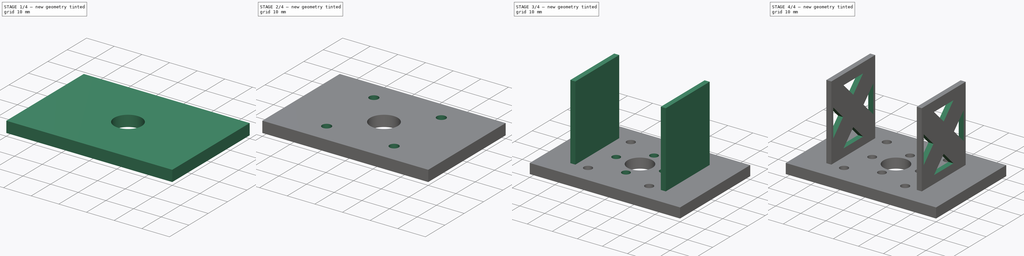
[diagram: build sequence overview — one tinted view per stage of 4, left to right]
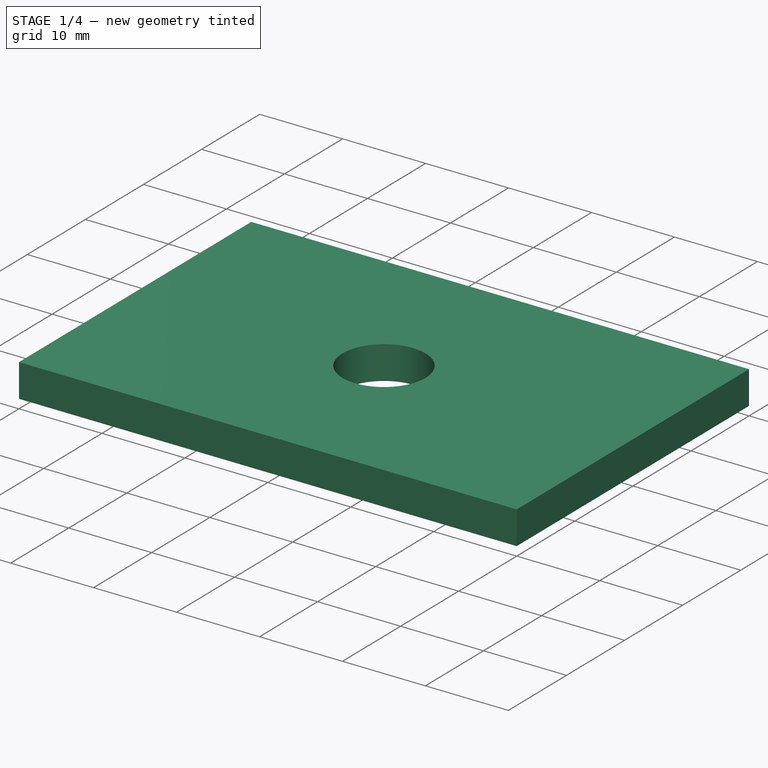
[diagram: stage 1 of 4 — iso view after this stage's code; geometry added in this stage tinted green]
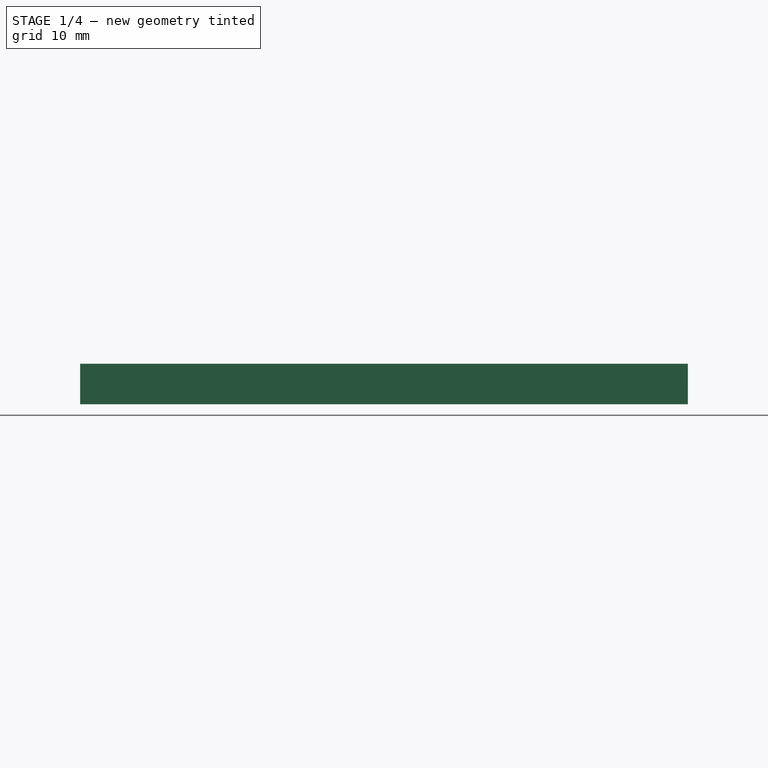
[diagram: stage 1 of 4 — front view after this stage's code; geometry added in this stage tinted green]
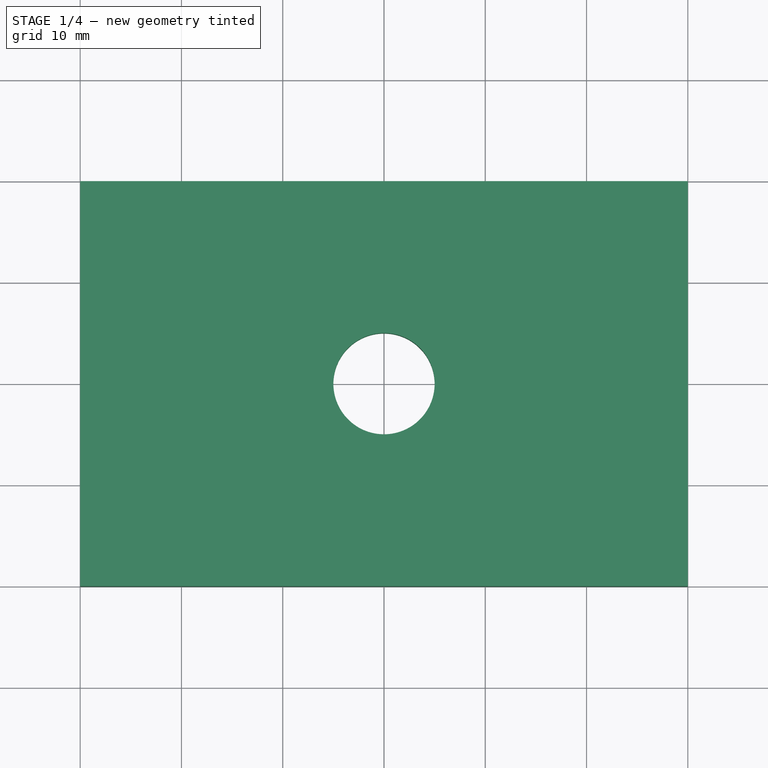
[diagram: stage 1 of 4 — top view after this stage's code; geometry added in this stage tinted green]
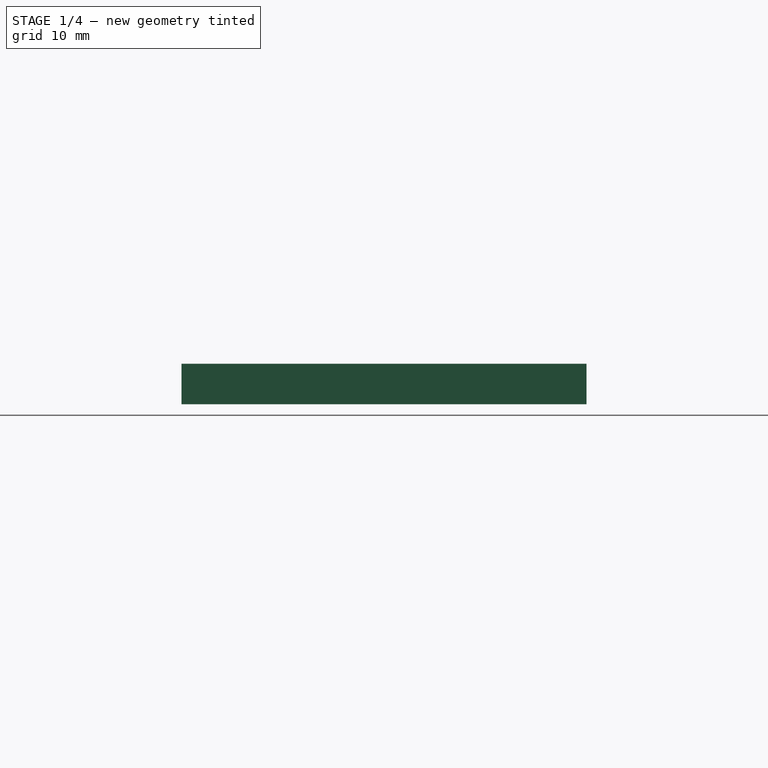
[diagram: stage 1 of 4 — right view after this stage's code; geometry added in this stage tinted green]
FCSTD DOCUMENT  (FreeCAD 0.18.1R)
Label: motor_mount_tractor
License: All rights reserved
LicenseURL: http://en.wikipedia.org/wiki/All_rights_reserved
objects: Sketcher::SketchObject×6, PartDesign::Pocket×3, PartDesign::PolarPattern×3, PartDesign::Pad×2, PartDesign::Line×2, PartDesign::MultiTransform×2, PartDesign::Hole×1, PartDesign::Body×1
note: 26 computed .brp shape members not serialized (recipe doc carries the construction recipe); baked Part::Feature solids carry a one-line shape summary decoded from their .brp

FEATURE [Sketcher::SketchObject] Sketch
  MapMode = 5
  Support = -> [XY_Plane]
  sketch-geometry (4):
    g0: LineSegment StartX=0 StartY=40 StartZ=0 EndX=60 EndY=40 EndZ=0
    g1: LineSegment StartX=60 StartY=40 StartZ=0 EndX=60 EndY=0 EndZ=0
    g2: LineSegment StartX=60 StartY=0 StartZ=0 EndX=0 EndY=0 EndZ=0
    g3: LineSegment StartX=0 StartY=0 StartZ=0 EndX=0 EndY=40 EndZ=0
  constraints (11):
    c: Coincident(g0,g1)
    c: Coincident(g1,g2)
    c: Coincident(g2,g3)
    c: Coincident(g3,g0)
    c: Horizontal(g0)
    c: Horizontal(g2)
    c: Vertical(g1)
    c: Vertical(g3)
    c: Coincident(g2,g-1)
    c: DistanceX(g0,g0) = 60
    c: DistanceY(g3,g3) = 40
FEATURE [PartDesign::Pad] Pad
  Length = 4
  Length2 = 100.076
  Profile = -> Sketch
  Refine = true
  Type = 0
FEATURE [Sketcher::SketchObject] Sketch001
  ExternalGeometry = -> [Pad]
  MapMode = 5
  Placement = pos=(0,0,4) rot=(0,0,1;0rad)
  Support = -> [Pad]
  sketch-geometry (3):
    g0: Circle CenterX=30 CenterY=20 CenterZ=0 NormalX=0 NormalY=0 NormalZ=1 AngleXU=0 Radius=5
    g1: LineSegment [constr] StartX=60 StartY=20 StartZ=0 EndX=30 EndY=20 EndZ=0
    g2: LineSegment [constr] StartX=30 StartY=40 StartZ=0 EndX=30 EndY=20 EndZ=0
  constraints (7):
    c: Diameter(g0) = 10
    c: Horizontal(g1)
    c: Vertical(g2)
    c: Coincident(g2,g1)
    c: Coincident(g0,g1)
    c: Symmetric(g-4,g-4,g1)
    c: Symmetric(g-3,g-4,g2)
FEATURE [PartDesign::Pocket] Pocket
  BaseFeature = -> Pad
  Length = 5.08
  Length2 = 100.076
  Profile = -> Sketch001
  Refine = true
  Type = 1
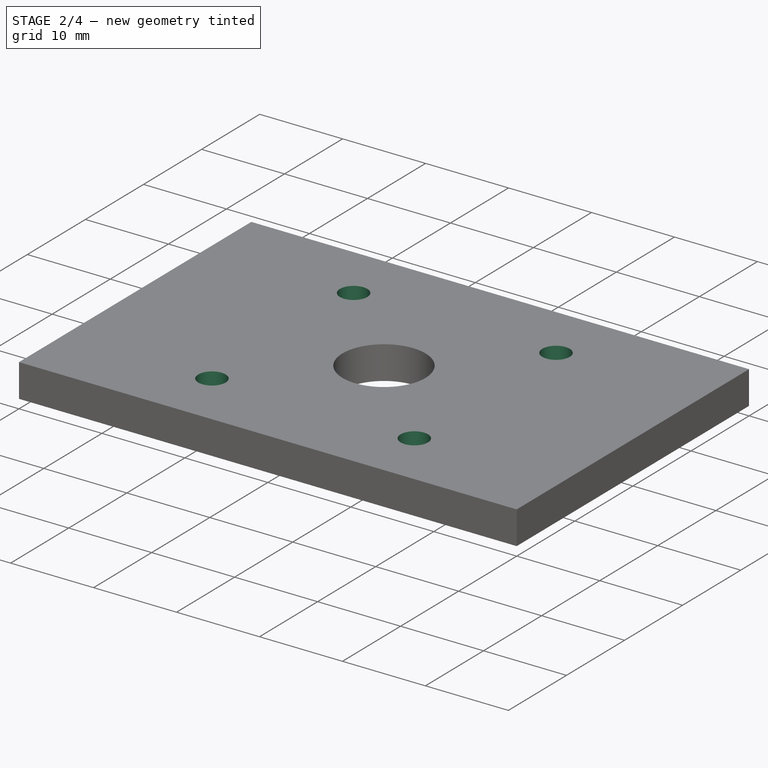
[diagram: stage 2 of 4 — iso view after this stage's code; geometry added in this stage tinted green]
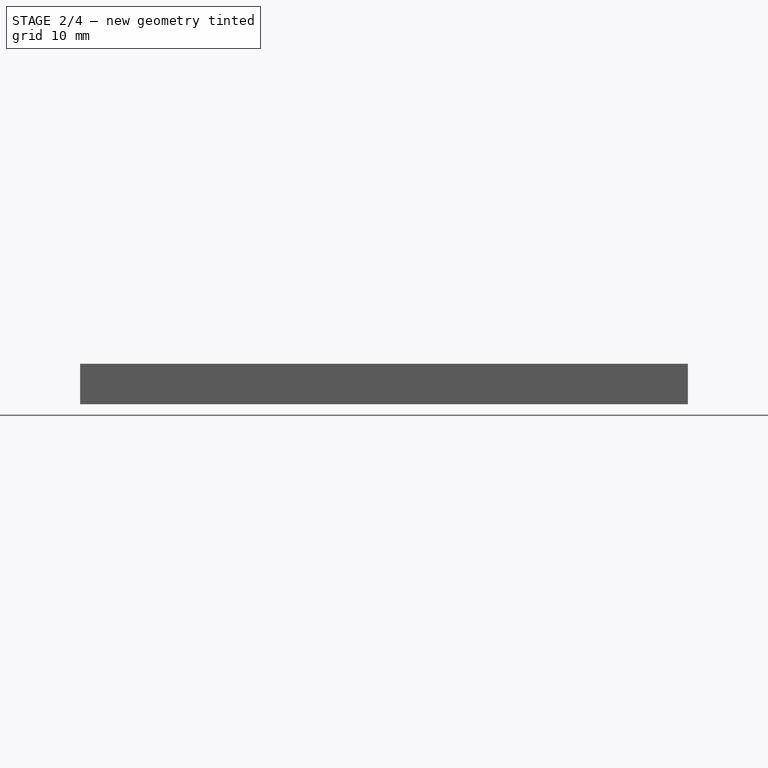
[diagram: stage 2 of 4 — front view after this stage's code; geometry added in this stage tinted green]
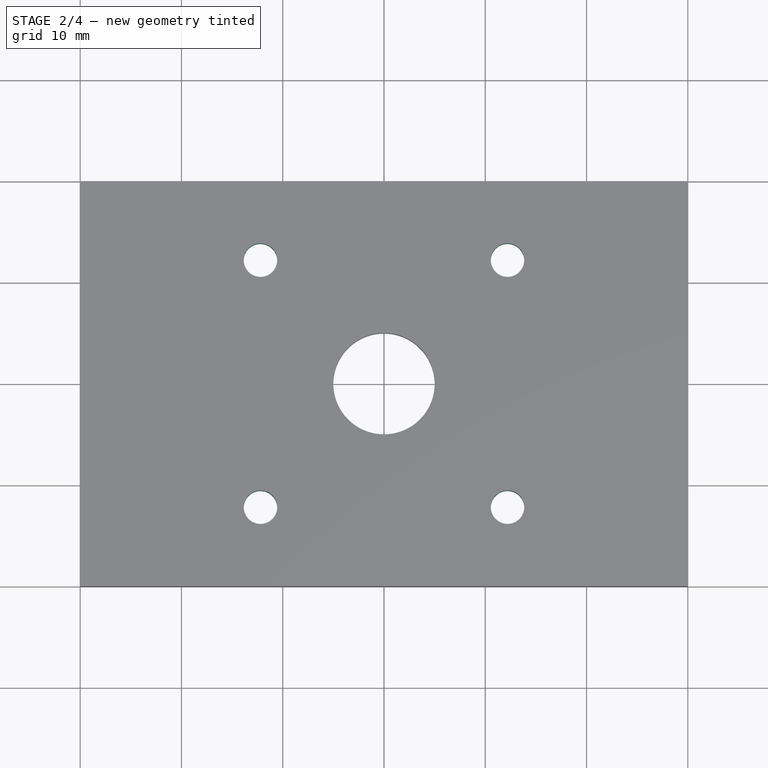
[diagram: stage 2 of 4 — top view after this stage's code; geometry added in this stage tinted green]
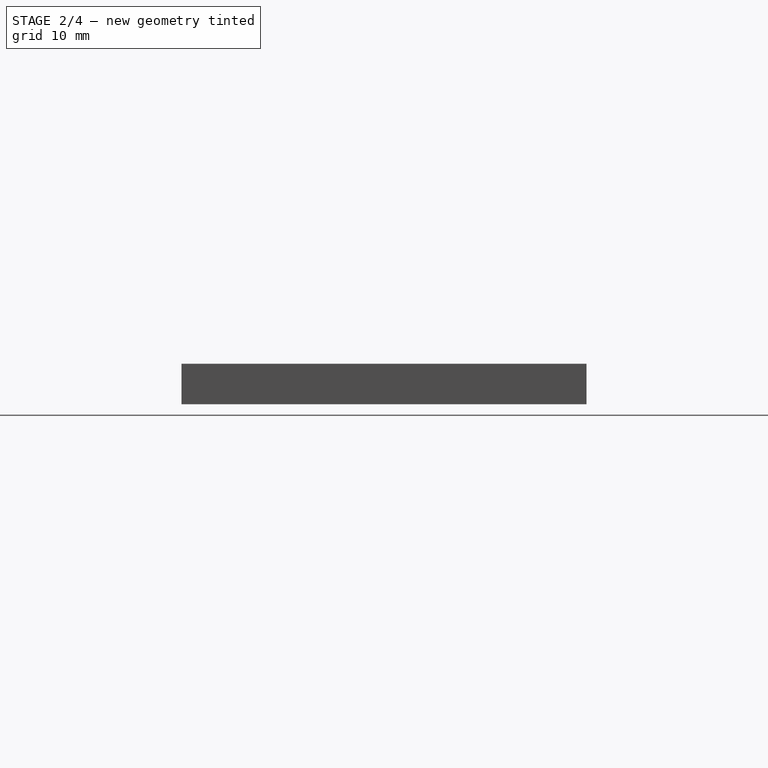
[diagram: stage 2 of 4 — right view after this stage's code; geometry added in this stage tinted green]
FEATURE [PartDesign::Line] DatumLine
  AttacherType = Attacher::AttachEngineLine
  MapMode = 42
  Placement = pos=(30,20,0) rot=(0,0,1;0rad)
  Support = -> [Pocket]
FEATURE [Sketcher::SketchObject] Sketch002
  ExternalGeometry = -> [Pocket]
  MapMode = 5
  Placement = pos=(0,0,4) rot=(0,0,1;0rad)
  Support = -> [Pocket]
  sketch-geometry (2):
    g0: Circle CenterX=17.8006 CenterY=32.1957 CenterZ=0 NormalX=0 NormalY=0 NormalZ=1 AngleXU=0 Radius=1.5
    g1: LineSegment [constr] StartX=30 StartY=40 StartZ=0 EndX=30 EndY=6.35329 EndZ=0
  constraints (5):
    c: Diameter(g0) = 3
    c: Vertical(g1)
    c: Symmetric(g-4,g-3,g1)
    c: DistanceX(g0,g1) = 12.1994
    c: Distance(g0,g-5) = 17.25
FEATURE [PartDesign::Hole] Hole
  BaseFeature = -> Pocket
  Depth = 25
  DepthType = 1
  Diameter = 3.3
  DrillPoint = 0
  DrillPointAngle = 118
  HoleCutCountersinkAngle = 90
  HoleCutDepth = 0
  HoleCutDiameter = 3
  HoleCutType = 0
  ModelActualThread = false
  Profile = -> Sketch002
  Refine = true
  Tapered = false
  TaperedAngle = 90
  ThreadAngle = 0
  ThreadClass = 0
  ThreadCutOffInner = 0
  ThreadCutOffOuter = 0
  ThreadDirection = 0
  ThreadFit = 0
  ThreadPitch = 0
  ThreadSize = 9
  ThreadType = 2
  Threaded = false
FEATURE [PartDesign::PolarPattern] PolarPattern
  Angle = 360
  Axis = -> DatumLine
  BaseFeature = -> Hole
  Occurrences = 4
  Originals = -> [Hole]
  Refine = true
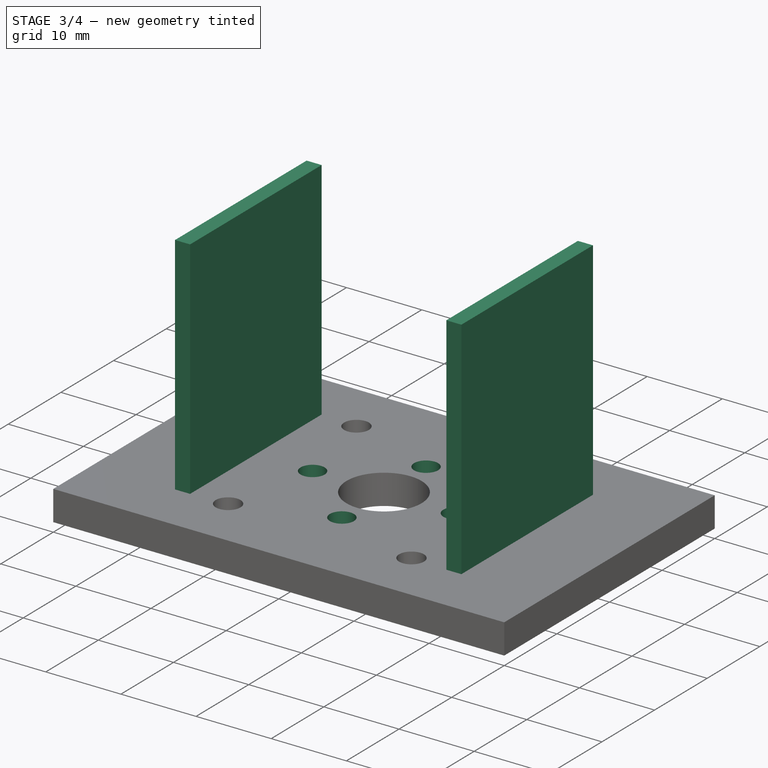
[diagram: stage 3 of 4 — iso view after this stage's code; geometry added in this stage tinted green]
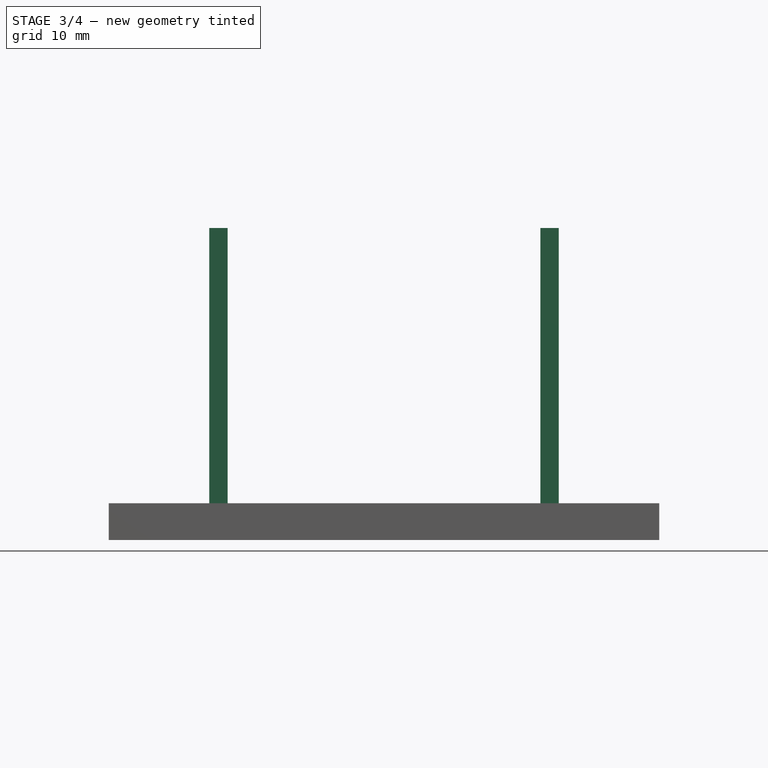
[diagram: stage 3 of 4 — front view after this stage's code; geometry added in this stage tinted green]
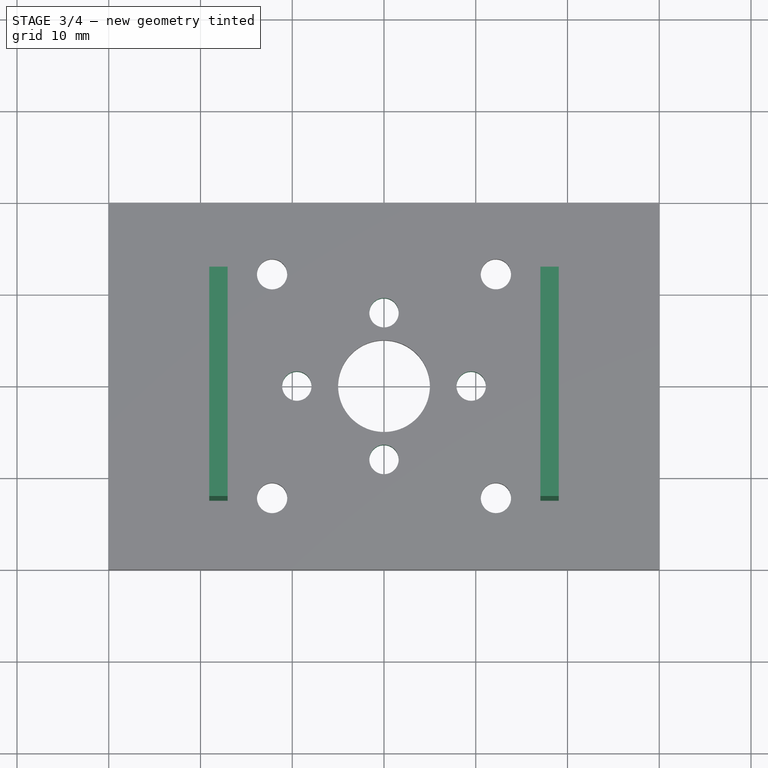
[diagram: stage 3 of 4 — top view after this stage's code; geometry added in this stage tinted green]
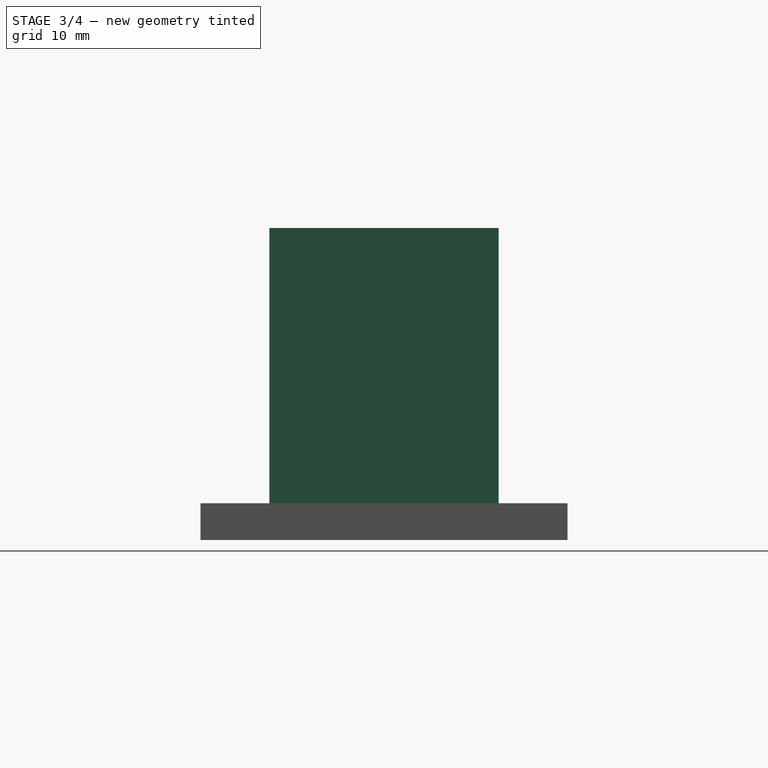
[diagram: stage 3 of 4 — right view after this stage's code; geometry added in this stage tinted green]
FEATURE [Sketcher::SketchObject] Sketch003
  ExternalGeometry = -> [PolarPattern]
  MapMode = 5
  Placement = pos=(0,0,4) rot=(0,0,1;0rad)
  Support = -> [PolarPattern]
  sketch-geometry (11):
    g0: LineSegment StartX=10.95 StartY=32.5 StartZ=0 EndX=12.95 EndY=32.5 EndZ=0
    g1: LineSegment StartX=12.95 StartY=32.5 StartZ=0 EndX=12.95 EndY=7.5 EndZ=0
    g2: LineSegment StartX=12.95 StartY=7.5 StartZ=0 EndX=10.95 EndY=7.5 EndZ=0
    g3: LineSegment StartX=10.95 StartY=7.5 StartZ=0 EndX=10.95 EndY=32.5 EndZ=0
    g4: LineSegment StartX=47.05 StartY=32.5 StartZ=0 EndX=49.05 EndY=32.5 EndZ=0
    g5: LineSegment StartX=49.05 StartY=32.5 StartZ=0 EndX=49.05 EndY=7.5 EndZ=0
    g6: LineSegment StartX=49.05 StartY=7.5 StartZ=0 EndX=47.05 EndY=7.5 EndZ=0
    g7: LineSegment StartX=47.05 StartY=7.5 StartZ=0 EndX=47.05 EndY=32.5 EndZ=0
    g8: LineSegment [constr] StartX=30 StartY=40 StartZ=0 EndX=30 EndY=0 EndZ=0
    g9: LineSegment [constr] StartX=10.95 StartY=32.5 StartZ=0 EndX=10.95 EndY=40 EndZ=0
    g10: LineSegment [constr] StartX=10.95 StartY=0 StartZ=0 EndX=10.95 EndY=7.5 EndZ=0
  constraints (32):
    c: Coincident(g0,g1)
    c: Coincident(g1,g2)
    c: Coincident(g2,g3)
    c: Coincident(g3,g0)
    c: Horizontal(g0)
    c: Horizontal(g2)
    c: Vertical(g1)
    c: Vertical(g3)
    c: Coincident(g4,g5)
    c: Coincident(g5,g6)
    c: Coincident(g6,g7)
    c: Coincident(g7,g4)
    c: Horizontal(g4)
    c: Horizontal(g6)
    c: Vertical(g5)
    c: Vertical(g7)
    c: PointOnObject(g8,g-3)
    c: PointOnObject(g8,g-1)
    c: Symmetric(g-3,g-4,g8)
    c: Equal(g0,g4)
    c: Symmetric(g0,g4,g8)
    c: DistanceX(g2,g2) = 2
    c: DistanceY(g3,g3) = 25
    c: Coincident(g2,g10)
    c: Vertical(g10)
    c: PointOnObject(g10,g-1)
    c: Coincident(g9,g0)
    c: PointOnObject(g9,g-3)
    c: Vertical(g9)
    c: Equal(g9,g10)
    c: Equal(g7,g1)
    c: DistanceX(g2,g8) = 19.05
FEATURE [PartDesign::Pad] Pad001
  BaseFeature = -> PolarPattern
  Length = 30
  Length2 = 100
  Profile = -> Sketch003
  Refine = true
  Type = 0
FEATURE [Sketcher::SketchObject] Sketch004
  ExternalGeometry = -> [Pad001]
  MapMode = 5
  Placement = pos=(0,0,4) rot=(0,0,1;0rad)
  Support = -> [Pad001]
  sketch-geometry (4):
    g0: Circle CenterX=30 CenterY=28 CenterZ=0 NormalX=0 NormalY=0 NormalZ=1 AngleXU=0 Radius=1.6
    g1: LineSegment [constr] StartX=30 StartY=0 StartZ=0 EndX=30 EndY=40 EndZ=0
    g2: LineSegment [constr] StartX=0 StartY=20 StartZ=0 EndX=60 EndY=20 EndZ=0
    g3: Circle CenterX=39.5 CenterY=20 CenterZ=0 NormalX=0 NormalY=0 NormalZ=1 AngleXU=0 Radius=1.6
  constraints (12):
    c: Radius(g0) = 1.6
    c: Horizontal(g2)
    c: Vertical(g1)
    c: PointOnObject(g2,g-2)
    c: PointOnObject(g1,g-1)
    c: PointOnObject(g0,g1)
    c: Symmetric(g-4,g-3,g1)
    c: Symmetric(g-4,g-4,g2)
    c: DistanceY(g2,g0) = 8
    c: Equal(g3,g0)
    c: PointOnObject(g3,g2)
    c: DistanceX(g1,g3) = 9.5
FEATURE [PartDesign::Pocket] Pocket001
  BaseFeature = -> Pad001
  Length = 5
  Length2 = 100
  Profile = -> Sketch004
  Refine = true
  Type = 1
FEATURE [PartDesign::PolarPattern] PolarPattern001
  Angle = 360
  Axis = -> DatumLine
  Occurrences = 2
  Refine = true
FEATURE [PartDesign::MultiTransform] MultiTransform
  BaseFeature = -> Pocket001
  Originals = -> [Pocket001]
  Refine = true
  Transformations = -> [PolarPattern001]
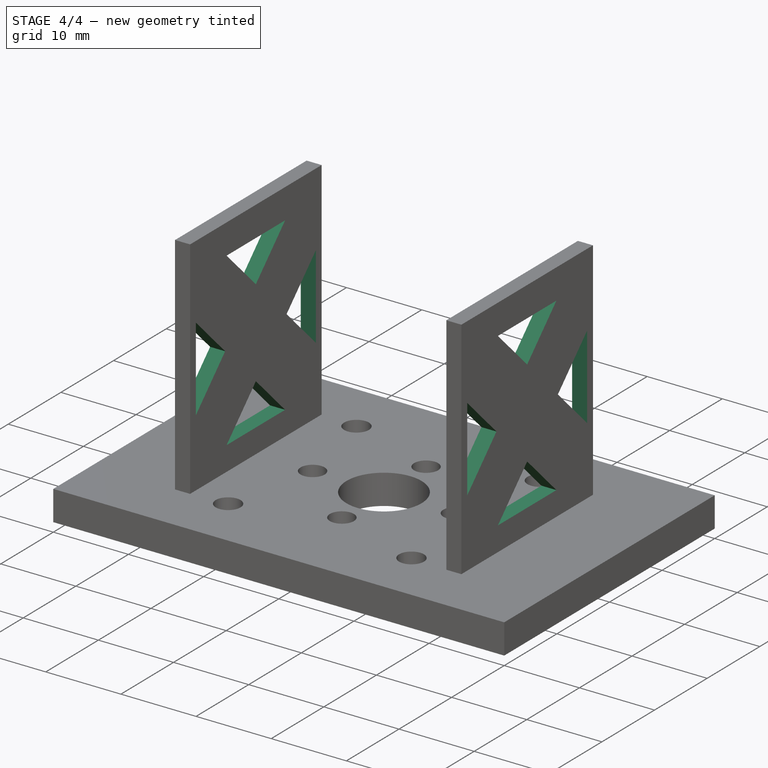
[diagram: stage 4 of 4 — iso view after this stage's code; geometry added in this stage tinted green]
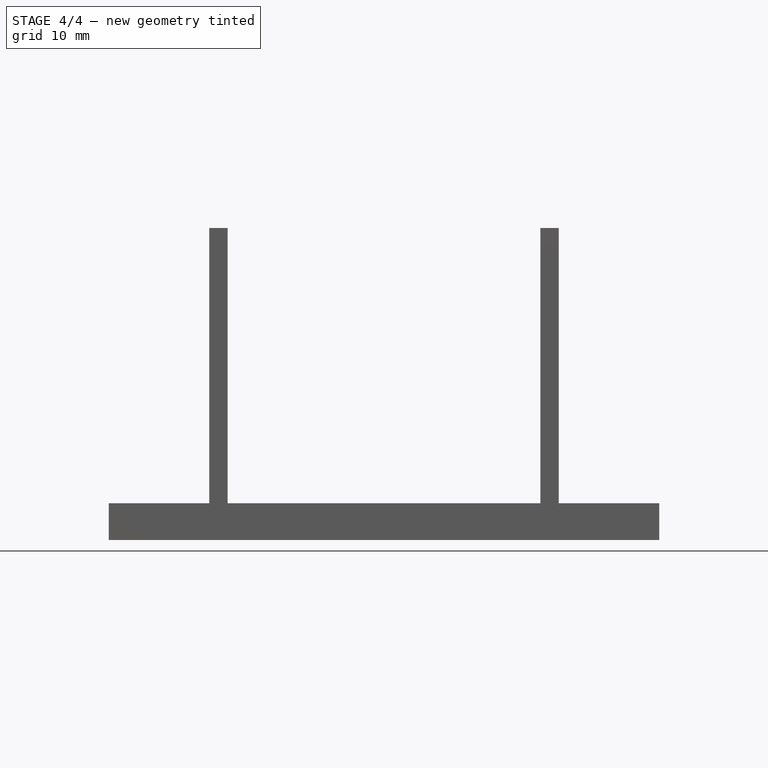
[diagram: stage 4 of 4 — front view after this stage's code; geometry added in this stage tinted green]
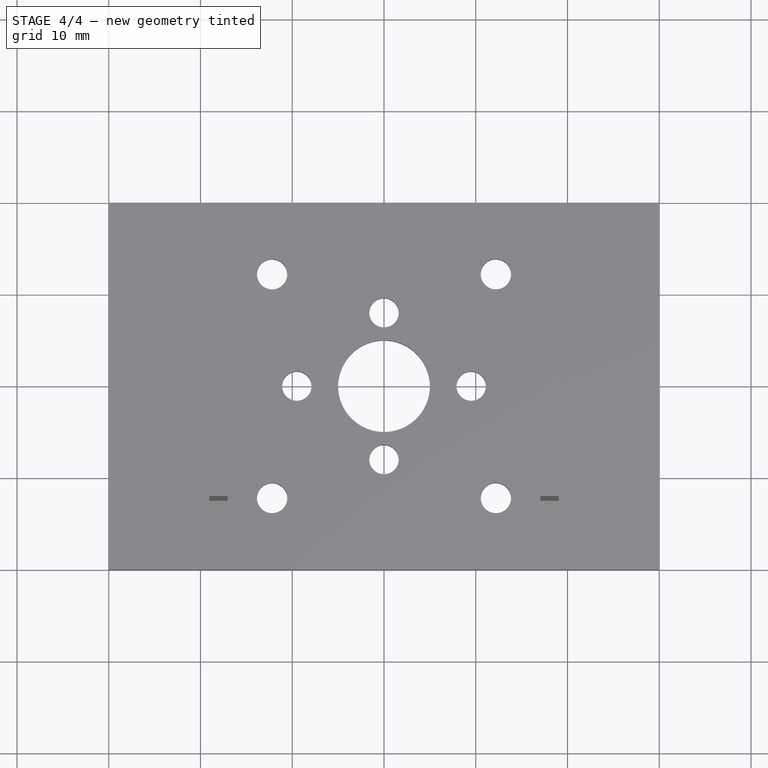
[diagram: stage 4 of 4 — top view after this stage's code; geometry added in this stage tinted green]
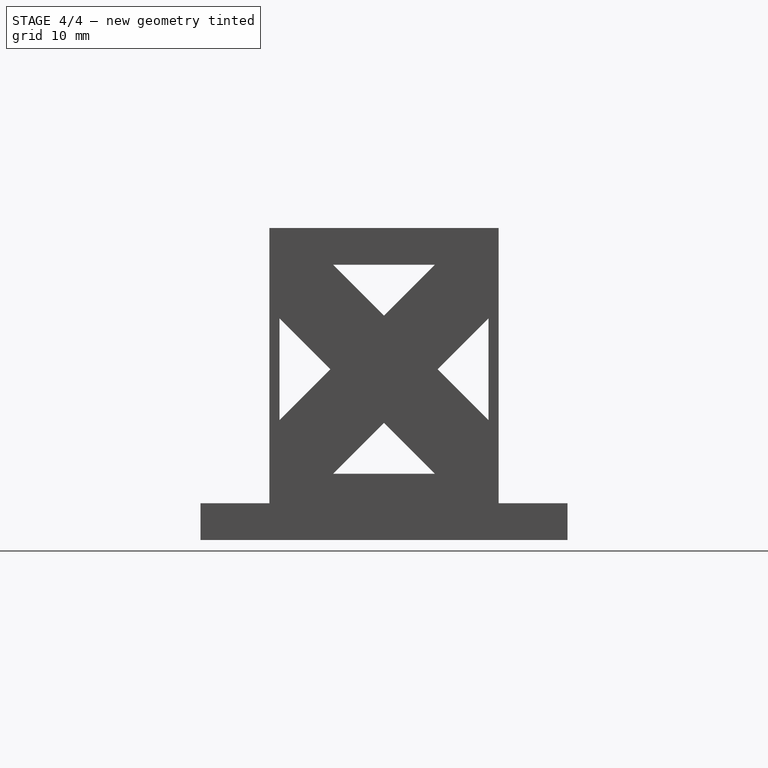
[diagram: stage 4 of 4 — right view after this stage's code; geometry added in this stage tinted green]
FEATURE [Sketcher::SketchObject] Sketch005
  ExternalGeometry = -> [Pad001]
  MapMode = 5
  Placement = pos=(10.95,0,0) rot=(0.57735,-0.57735,-0.57735;2.0944rad)
  Support = -> [Pad001]
  sketch-geometry (7):
    g0: LineSegment StartX=-20 StartY=24.44 StartZ=0 EndX=-25.56 EndY=30 EndZ=0
    g1: LineSegment StartX=-25.56 StartY=30 StartZ=0 EndX=-14.44 EndY=30 EndZ=0
    g2: LineSegment StartX=-14.44 StartY=30 StartZ=0 EndX=-20 EndY=24.44 EndZ=0
    g3: LineSegment [constr] StartX=-20 StartY=4 StartZ=0 EndX=-20 EndY=34 EndZ=0
    g4: LineSegment [constr] StartX=-32.5 StartY=30 StartZ=0 EndX=-25.56 EndY=30 EndZ=0
    g5: LineSegment [constr] StartX=-14.44 StartY=30 StartZ=0 EndX=-7.5 EndY=30 EndZ=0
    g6: LineSegment [constr] StartX=-32.5 StartY=19 StartZ=0 EndX=-7.5 EndY=19 EndZ=0
  constraints (21):
    c: Coincident(g0,g1)
    c: Coincident(g1,g2)
    c: Coincident(g2,g0)
    c: Perpendicular(g0,g2)
    c: Horizontal(g1)
    c: Coincident(g5,g1)
    c: Coincident(g4,g0)
    c: Horizontal(g4)
    c: Horizontal(g5)
    c: PointOnObject(g3,g-4)
    c: Symmetric(g-4,g-5,g3)
    c: PointOnObject(g4,g-3)
    c: PointOnObject(g5,g-5)
    c: Equal(g5,g4)
    c: PointOnObject(g0,g3)
    c: DistanceY(g0,g-4) = 4
    c: PointOnObject(g3,g-6)
    c: PointOnObject(g6,g-3)
    c: PointOnObject(g6,g-5)
    c: Symmetric(g-4,g-6,g6)
    c: DistanceY(g6,g0) = 5.44
FEATURE [PartDesign::Pocket] Pocket002
  BaseFeature = -> MultiTransform
  Length = 5
  Length2 = 100
  Profile = -> Sketch005
  Refine = true
  Type = 1
FEATURE [PartDesign::Line] DatumLine001
  AttacherType = Attacher::AttachEngineLine
  MapMode = 42
  Placement = pos=(0,20,18.6068) rot=(0.57735,0.57735,0.57735;2.0944rad)
  Support = -> [Pocket002]
FEATURE [PartDesign::PolarPattern] PolarPattern002
  Angle = 360
  Axis = -> DatumLine001
  Occurrences = 4
  Refine = true
FEATURE [PartDesign::MultiTransform] MultiTransform001
  BaseFeature = -> Pocket002
  Originals = -> [Pocket002]
  Refine = true
  Transformations = -> [PolarPattern002]
FEATURE [PartDesign::Body] Body
  Group = -> [Sketch,Pad,Sketch001,Pocket,DatumLine,Sketch002,Hole,PolarPattern,Sketch003,Pad001,Sketch004,Pocket001,MultiTransform,PolarPattern001,Sketch005,Pocket002,DatumLine001,MultiTransform001,PolarPattern002]
  Origin = -> Origin
  Tip = -> MultiTransform001
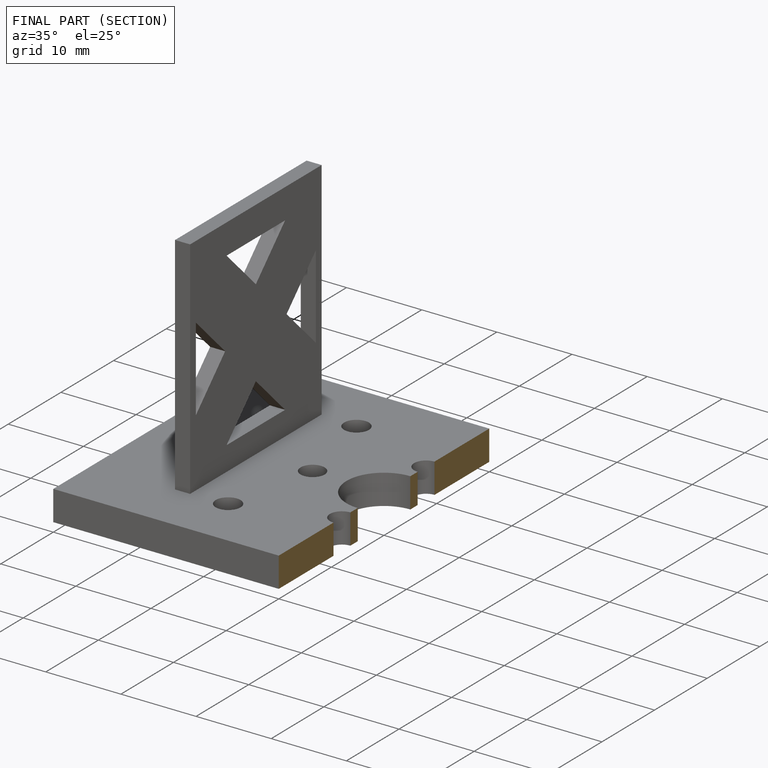
[diagram: finished part — half-section view (interior)]
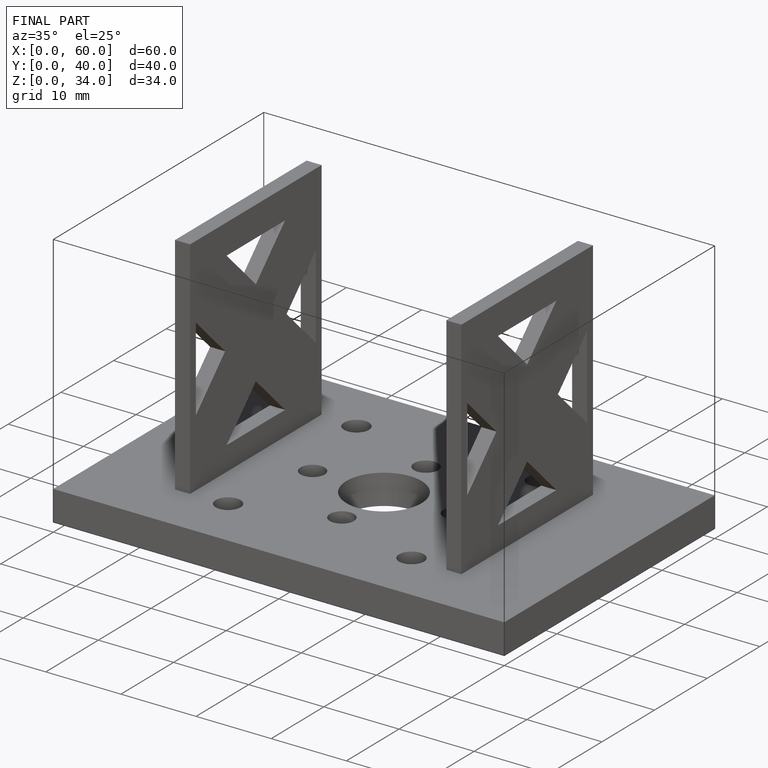
[diagram: finished part — iso view with bounding-box wireframe]
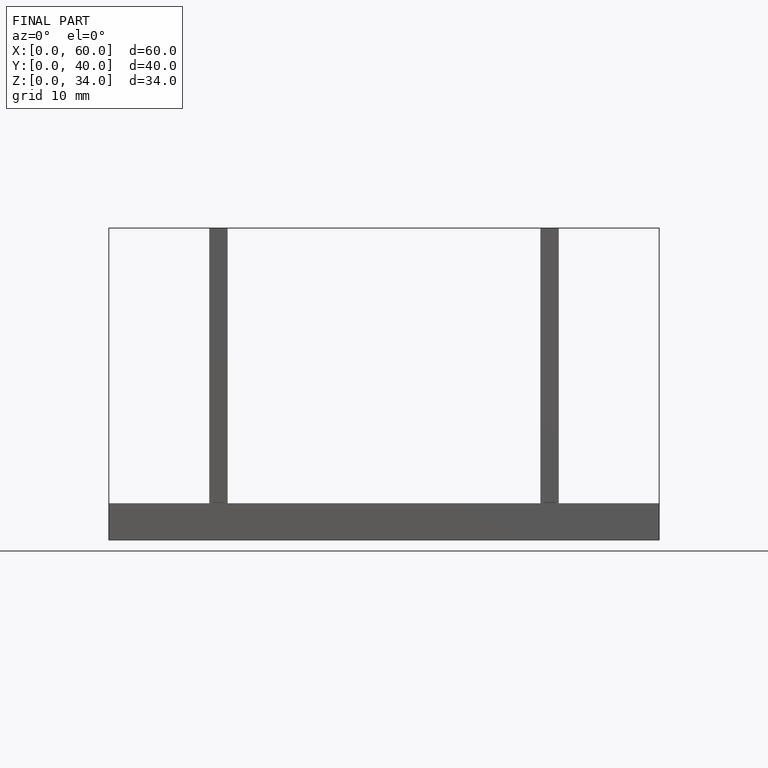
[diagram: finished part — front view with bounding-box wireframe]
